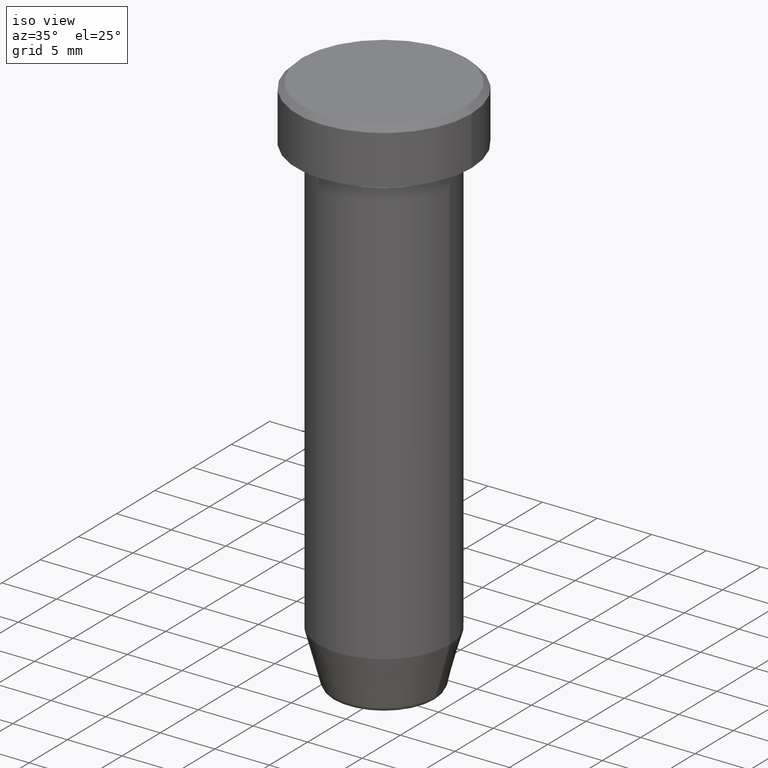
[diagram: clean part render]
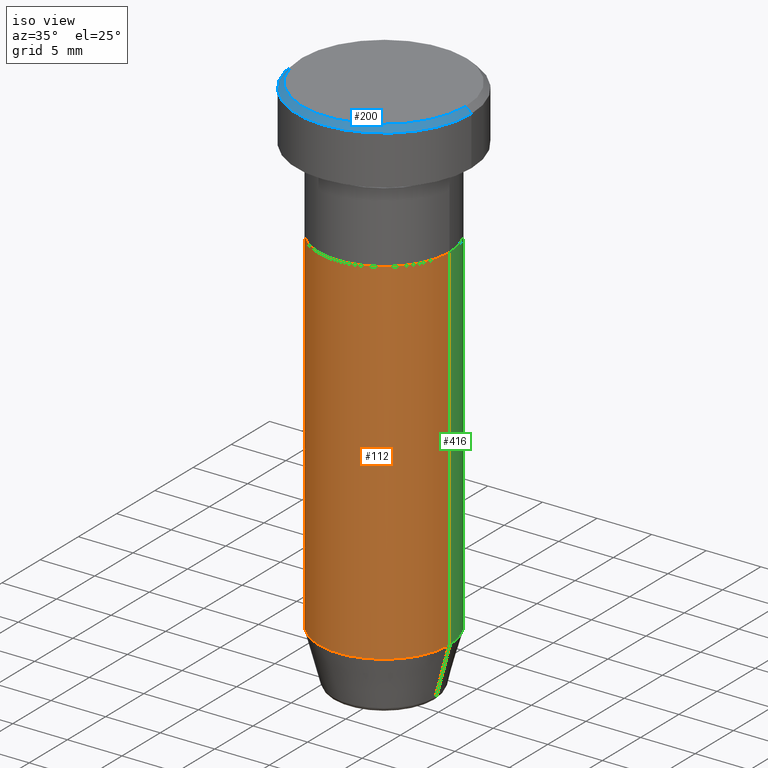
[diagram: same view with three faces highlighted in distinct colors, each labeled with its STEP entity id]
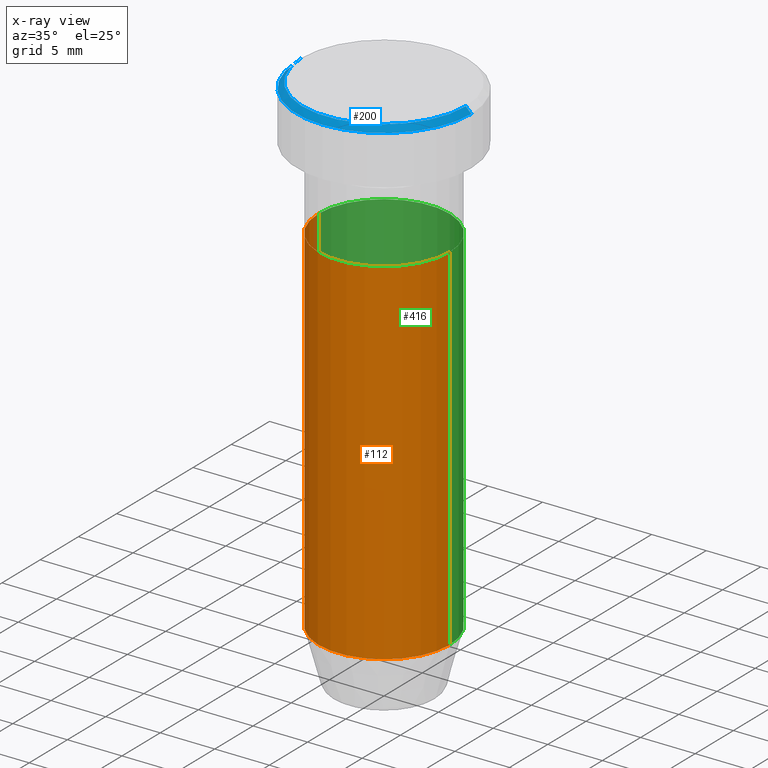
[diagram: x-ray of the same camera — body ghosted, the three highlighted faces saturated]
A machine part, iso view with three faces highlighted in distinct colors.
The next image is the same camera in x-ray (body ghosted, the three faces saturated) — at least one of them is partly hidden behind the body in this view.
Their STEP definitions:

[orange] entity #112 — the highlighted cylindrical surface (partial cylindrical patch) has radius 6 mm, axis along (-0, -0, 1).
#7 = CARTESIAN_POINT ( 'NONE',  ( -6.000000000000000000, 7.347880794884119736E-16, -12.50000000000000000 ) ) ;
#21 = ORIENTED_EDGE ( 'NONE', *, *, #66, .F. ) ;
#33 = VERTEX_POINT ( 'NONE', #175 ) ;
#48 = CARTESIAN_POINT ( 'NONE',  ( 6.000000000000000000, 0.000000000000000000, 0.000000000000000000 ) ) ;
#62 = ORIENTED_EDGE ( 'NONE', *, *, #321, .F. ) ;
#64 = AXIS2_PLACEMENT_3D ( 'NONE', #559, #235, #514 ) ;
#65 = FACE_OUTER_BOUND ( 'NONE', #537, .T. ) ;
#66 = EDGE_CURVE ( 'NONE', #33, #205, #487, .T. ) ;
#70 = DIRECTION ( 'NONE',  ( -0.000000000000000000, -0.000000000000000000, 1.000000000000000000 ) ) ;
#91 = VECTOR ( 'NONE', #98, 1000.000000000000000 ) ;
#98 = DIRECTION ( 'NONE',  ( -0.000000000000000000, -0.000000000000000000, 1.000000000000000000 ) ) ;
#102 = DIRECTION ( 'NONE',  ( -0.000000000000000000, -0.000000000000000000, 1.000000000000000000 ) ) ;
#105 = CARTESIAN_POINT ( 'NONE',  ( 0.000000000000000000, 0.000000000000000000, -12.50000000000000000 ) ) ;
#109 = CIRCLE ( 'NONE', #64, 6.000000000000000000 ) ;
#112 = ADVANCED_FACE ( 'NONE', ( #65 ), #210, .T. ) ;
#134 = LINE ( 'NONE', #48, #91 ) ;
#158 = VECTOR ( 'NONE', #70, 1000.000000000000000 ) ;
#175 = CARTESIAN_POINT ( 'NONE',  ( -6.000000000000000000, 7.347880794884119736E-16, -45.00000000000000000 ) ) ;
#203 = AXIS2_PLACEMENT_3D ( 'NONE', #105, #520, #289 ) ;
#205 = VERTEX_POINT ( 'NONE', #7 ) ;
#210 = CYLINDRICAL_SURFACE ( 'NONE', #281, 6.000000000000000000 ) ;
#214 = DIRECTION ( 'NONE',  ( 1.000000000000000000, 0.000000000000000000, 0.000000000000000000 ) ) ;
#235 = DIRECTION ( 'NONE',  ( -0.000000000000000000, -0.000000000000000000, 1.000000000000000000 ) ) ;
#256 = CARTESIAN_POINT ( 'NONE',  ( 0.000000000000000000, 0.000000000000000000, 0.000000000000000000 ) ) ;
#281 = AXIS2_PLACEMENT_3D ( 'NONE', #256, #102, #214 ) ;
#289 = DIRECTION ( 'NONE',  ( 1.000000000000000000, 0.000000000000000000, 0.000000000000000000 ) ) ;
#305 = EDGE_CURVE ( 'NONE', #33, #393, #109, .T. ) ;
#307 = EDGE_CURVE ( 'NONE', #393, #513, #134, .T. ) ;
#321 = EDGE_CURVE ( 'NONE', #205, #513, #326, .T. ) ;
#326 = CIRCLE ( 'NONE', #203, 6.000000000000000000 ) ;
#393 = VERTEX_POINT ( 'NONE', #484 ) ;
#403 = CARTESIAN_POINT ( 'NONE',  ( 6.000000000000000000, 0.000000000000000000, -12.50000000000000000 ) ) ;
#404 = ORIENTED_EDGE ( 'NONE', *, *, #305, .T. ) ;
#484 = CARTESIAN_POINT ( 'NONE',  ( 6.000000000000000000, 0.000000000000000000, -45.00000000000000000 ) ) ;
#487 = LINE ( 'NONE', #577, #158 ) ;
#513 = VERTEX_POINT ( 'NONE', #403 ) ;
#514 = DIRECTION ( 'NONE',  ( 1.000000000000000000, 0.000000000000000000, 0.000000000000000000 ) ) ;
#520 = DIRECTION ( 'NONE',  ( -0.000000000000000000, -0.000000000000000000, 1.000000000000000000 ) ) ;
#537 = EDGE_LOOP ( 'NONE', ( #21, #404, #560, #62 ) ) ;
#559 = CARTESIAN_POINT ( 'NONE',  ( 0.000000000000000000, 0.000000000000000000, -45.00000000000000000 ) ) ;
#560 = ORIENTED_EDGE ( 'NONE', *, *, #307, .T. ) ;
#577 = CARTESIAN_POINT ( 'NONE',  ( -6.000000000000000000, 7.347880794884119736E-16, 0.000000000000000000 ) ) ;

[blue] entity #200 — the highlighted conical surface has half-angle 45 deg.
#15 = CARTESIAN_POINT ( 'NONE',  ( -8.000000000000000000, 9.797174393178825657E-16, -0.5000000000000004441 ) ) ;
#36 = CONICAL_SURFACE ( 'NONE', #313, 7.500000000000003553, 0.7853981633974447263 ) ;
#78 = DIRECTION ( 'NONE',  ( -1.000000000000000000, 0.000000000000000000, 0.000000000000000000 ) ) ;
#82 = VECTOR ( 'NONE', #199, 1000.000000000000114 ) ;
#87 = CARTESIAN_POINT ( 'NONE',  ( 0.000000000000000000, 0.000000000000000000, 0.000000000000000000 ) ) ;
#88 = CARTESIAN_POINT ( 'NONE',  ( 8.000000000000000000, 0.000000000000000000, -0.5000000000000004441 ) ) ;
#107 = ORIENTED_EDGE ( 'NONE', *, *, #113, .F. ) ;
#113 = EDGE_CURVE ( 'NONE', #330, #582, #161, .T. ) ;
#118 = DIRECTION ( 'NONE',  ( -0.000000000000000000, -0.000000000000000000, 1.000000000000000000 ) ) ;
#121 = EDGE_LOOP ( 'NONE', ( #107, #350, #302, #596 ) ) ;
#142 = CARTESIAN_POINT ( 'NONE',  ( 7.500000000000003553, 9.491012693391989759E-16, 0.000000000000000000 ) ) ;
#143 = EDGE_CURVE ( 'NONE', #582, #357, #241, .T. ) ;
#161 = LINE ( 'NONE', #575, #82 ) ;
#163 = CARTESIAN_POINT ( 'NONE',  ( 0.000000000000000000, 0.000000000000000000, -0.5000000000000004441 ) ) ;
#194 = DIRECTION ( 'NONE',  ( -0.7071067811865451302, 0.000000000000000000, -0.7071067811865500152 ) ) ;
#199 = DIRECTION ( 'NONE',  ( 0.7071067811865451302, 8.659560562354903276E-17, -0.7071067811865500152 ) ) ;
#200 = ADVANCED_FACE ( 'NONE', ( #455 ), #36, .T. ) ;
#207 = DIRECTION ( 'NONE',  ( 0.000000000000000000, 0.000000000000000000, -1.000000000000000000 ) ) ;
#218 = EDGE_CURVE ( 'NONE', #253, #330, #333, .T. ) ;
#219 = CARTESIAN_POINT ( 'NONE',  ( -7.500000000000003553, 0.000000000000000000, 0.000000000000000000 ) ) ;
#241 = CIRCLE ( 'NONE', #441, 8.000000000000000000 ) ;
#247 = CARTESIAN_POINT ( 'NONE',  ( -7.500000000000003553, 0.000000000000000000, 0.000000000000000000 ) ) ;
#253 = VERTEX_POINT ( 'NONE', #219 ) ;
#280 = DIRECTION ( 'NONE',  ( 1.000000000000000000, 0.000000000000000000, 0.000000000000000000 ) ) ;
#282 = AXIS2_PLACEMENT_3D ( 'NONE', #516, #118, #280 ) ;
#302 = ORIENTED_EDGE ( 'NONE', *, *, #329, .T. ) ;
#313 = AXIS2_PLACEMENT_3D ( 'NONE', #87, #591, #78 ) ;
#329 = EDGE_CURVE ( 'NONE', #253, #357, #574, .T. ) ;
#330 = VERTEX_POINT ( 'NONE', #142 ) ;
#333 = CIRCLE ( 'NONE', #282, 7.500000000000003553 ) ;
#350 = ORIENTED_EDGE ( 'NONE', *, *, #218, .F. ) ;
#357 = VERTEX_POINT ( 'NONE', #15 ) ;
#441 = AXIS2_PLACEMENT_3D ( 'NONE', #163, #207, #445 ) ;
#445 = DIRECTION ( 'NONE',  ( 1.000000000000000000, 0.000000000000000000, 0.000000000000000000 ) ) ;
#455 = FACE_OUTER_BOUND ( 'NONE', #121, .T. ) ;
#516 = CARTESIAN_POINT ( 'NONE',  ( 0.000000000000000000, 0.000000000000000000, 0.000000000000000000 ) ) ;
#549 = VECTOR ( 'NONE', #194, 1000.000000000000114 ) ;
#574 = LINE ( 'NONE', #247, #549 ) ;
#575 = CARTESIAN_POINT ( 'NONE',  ( 7.500000000000003553, 9.184850993605153861E-16, 0.000000000000000000 ) ) ;
#582 = VERTEX_POINT ( 'NONE', #88 ) ;
#591 = DIRECTION ( 'NONE',  ( 0.000000000000000000, 0.000000000000000000, -1.000000000000000000 ) ) ;
#596 = ORIENTED_EDGE ( 'NONE', *, *, #143, .F. ) ;

[green] entity #416 — the highlighted cylindrical surface (partial cylindrical patch) has radius 6 mm, axis along (-0, -0, 1).
#7 = CARTESIAN_POINT ( 'NONE',  ( -6.000000000000000000, 7.347880794884119736E-16, -12.50000000000000000 ) ) ;
#27 = ORIENTED_EDGE ( 'NONE', *, *, #341, .T. ) ;
#33 = VERTEX_POINT ( 'NONE', #175 ) ;
#48 = CARTESIAN_POINT ( 'NONE',  ( 6.000000000000000000, 0.000000000000000000, 0.000000000000000000 ) ) ;
#57 = CYLINDRICAL_SURFACE ( 'NONE', #359, 6.000000000000000000 ) ;
#66 = EDGE_CURVE ( 'NONE', #33, #205, #487, .T. ) ;
#70 = DIRECTION ( 'NONE',  ( -0.000000000000000000, -0.000000000000000000, 1.000000000000000000 ) ) ;
#83 = ORIENTED_EDGE ( 'NONE', *, *, #307, .F. ) ;
#91 = VECTOR ( 'NONE', #98, 1000.000000000000000 ) ;
#98 = DIRECTION ( 'NONE',  ( -0.000000000000000000, -0.000000000000000000, 1.000000000000000000 ) ) ;
#134 = LINE ( 'NONE', #48, #91 ) ;
#138 = AXIS2_PLACEMENT_3D ( 'NONE', #286, #343, #395 ) ;
#153 = ORIENTED_EDGE ( 'NONE', *, *, #165, .F. ) ;
#158 = VECTOR ( 'NONE', #70, 1000.000000000000000 ) ;
#164 = EDGE_LOOP ( 'NONE', ( #27, #249, #153, #83 ) ) ;
#165 = EDGE_CURVE ( 'NONE', #513, #205, #169, .T. ) ;
#169 = CIRCLE ( 'NONE', #178, 6.000000000000000000 ) ;
#175 = CARTESIAN_POINT ( 'NONE',  ( -6.000000000000000000, 7.347880794884119736E-16, -45.00000000000000000 ) ) ;
#178 = AXIS2_PLACEMENT_3D ( 'NONE', #528, #534, #494 ) ;
#204 = DIRECTION ( 'NONE',  ( -0.000000000000000000, -0.000000000000000000, 1.000000000000000000 ) ) ;
#205 = VERTEX_POINT ( 'NONE', #7 ) ;
#213 = CIRCLE ( 'NONE', #138, 6.000000000000000000 ) ;
#246 = DIRECTION ( 'NONE',  ( 1.000000000000000000, 0.000000000000000000, 0.000000000000000000 ) ) ;
#249 = ORIENTED_EDGE ( 'NONE', *, *, #66, .T. ) ;
#286 = CARTESIAN_POINT ( 'NONE',  ( 0.000000000000000000, 0.000000000000000000, -45.00000000000000000 ) ) ;
#300 = CARTESIAN_POINT ( 'NONE',  ( 0.000000000000000000, 0.000000000000000000, 0.000000000000000000 ) ) ;
#307 = EDGE_CURVE ( 'NONE', #393, #513, #134, .T. ) ;
#341 = EDGE_CURVE ( 'NONE', #393, #33, #213, .T. ) ;
#343 = DIRECTION ( 'NONE',  ( -0.000000000000000000, -0.000000000000000000, 1.000000000000000000 ) ) ;
#348 = FACE_OUTER_BOUND ( 'NONE', #164, .T. ) ;
#359 = AXIS2_PLACEMENT_3D ( 'NONE', #300, #204, #246 ) ;
#393 = VERTEX_POINT ( 'NONE', #484 ) ;
#395 = DIRECTION ( 'NONE',  ( 1.000000000000000000, 0.000000000000000000, 0.000000000000000000 ) ) ;
#403 = CARTESIAN_POINT ( 'NONE',  ( 6.000000000000000000, 0.000000000000000000, -12.50000000000000000 ) ) ;
#416 = ADVANCED_FACE ( 'NONE', ( #348 ), #57, .T. ) ;
#484 = CARTESIAN_POINT ( 'NONE',  ( 6.000000000000000000, 0.000000000000000000, -45.00000000000000000 ) ) ;
#487 = LINE ( 'NONE', #577, #158 ) ;
#494 = DIRECTION ( 'NONE',  ( 1.000000000000000000, 0.000000000000000000, 0.000000000000000000 ) ) ;
#513 = VERTEX_POINT ( 'NONE', #403 ) ;
#528 = CARTESIAN_POINT ( 'NONE',  ( 0.000000000000000000, 0.000000000000000000, -12.50000000000000000 ) ) ;
#534 = DIRECTION ( 'NONE',  ( -0.000000000000000000, -0.000000000000000000, 1.000000000000000000 ) ) ;
#577 = CARTESIAN_POINT ( 'NONE',  ( -6.000000000000000000, 7.347880794884119736E-16, 0.000000000000000000 ) ) ;